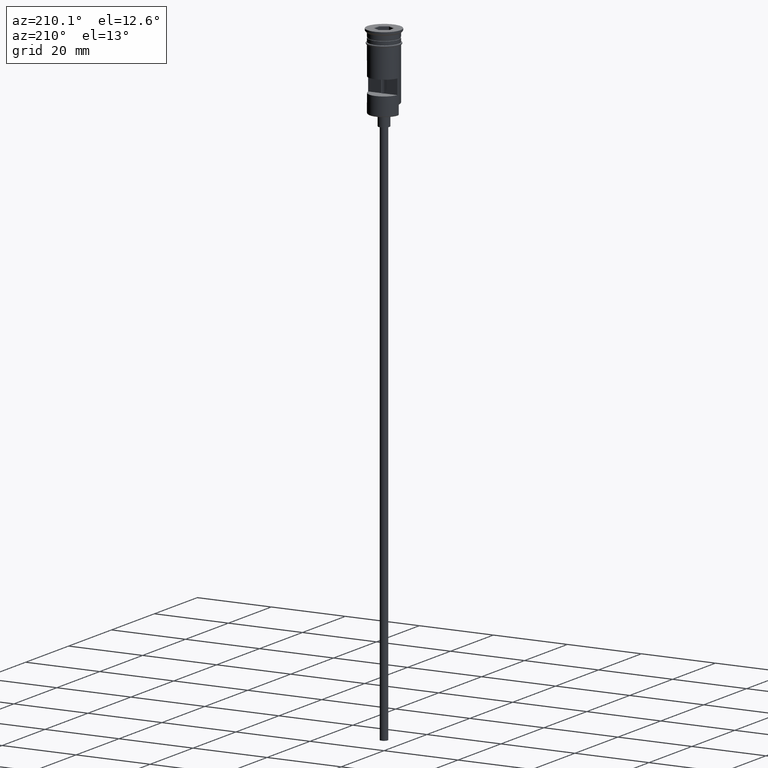
[diagram: clean part render]
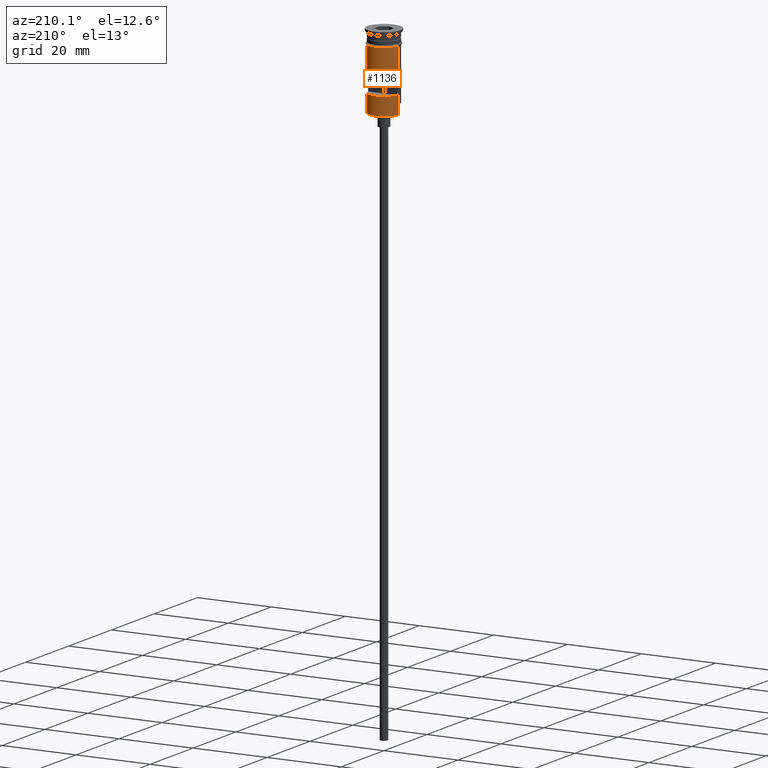
[diagram: same view with one face highlighted and labeled with its STEP entity id]
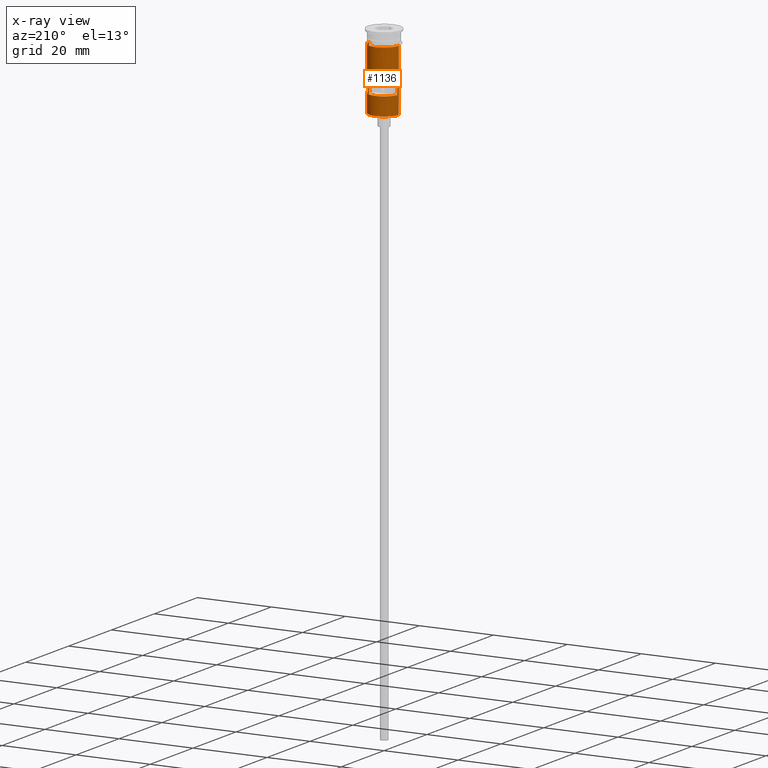
[diagram: x-ray of the same camera — body ghosted, the highlighted face saturated]
A machine part, auxiliary view. The second image highlights one B-rep face of the part: STEP entity #1136.
The next image is the same camera in x-ray: the body ghosted, the highlighted face saturated — about 0% of this face is hidden behind the body in this view.
In plain terms, the highlighted cylindrical surface (edge-blend (fillet) strip) has radius 4 mm, axis along (-0, -0, 1).
Its self-contained STEP definition (entity closure, byte-faithful):
#12 = VERTEX_POINT ( 'NONE', #555 ) ;
#30 = ORIENTED_EDGE ( 'NONE', *, *, #1176, .T. ) ;
#46 = DIRECTION ( 'NONE',  ( -0.000000000000000000, 0.000000000000000000, -1.000000000000000000 ) ) ;
#51 = AXIS2_PLACEMENT_3D ( 'NONE', #1554, #1308, #94 ) ;
#69 = CARTESIAN_POINT ( 'NONE',  ( -3.999999999999997335, 0.000000000000000000, -20.29999999999997584 ) ) ;
#76 = LINE ( 'NONE', #1069, #79 ) ;
#79 = VECTOR ( 'NONE', #1300, 1000.000000000000000 ) ;
#80 = VERTEX_POINT ( 'NONE', #1104 ) ;
#94 = DIRECTION ( 'NONE',  ( 1.000000000000000000, 0.000000000000000000, 0.000000000000000000 ) ) ;
#98 = EDGE_CURVE ( 'NONE', #213, #713, #373, .T. ) ;
#103 = CYLINDRICAL_SURFACE ( 'NONE', #1463, 4.000000000000000000 ) ;
#107 = CARTESIAN_POINT ( 'NONE',  ( 3.954743986657037524, 0.5999999999999996447, 0.000000000000000000 ) ) ;
#133 = CARTESIAN_POINT ( 'NONE',  ( -3.954743986657037524, 0.5999999999999996447, -15.50000000000000000 ) ) ;
#145 = CARTESIAN_POINT ( 'NONE',  ( -3.954743986657037524, 0.5999999999999996447, -11.50000000000000000 ) ) ;
#182 = CARTESIAN_POINT ( 'NONE',  ( 0.000000000000000000, 0.000000000000000000, -11.50000000000000000 ) ) ;
#184 = VERTEX_POINT ( 'NONE', #133 ) ;
#213 = VERTEX_POINT ( 'NONE', #69 ) ;
#226 = CARTESIAN_POINT ( 'NONE',  ( 0.000000000000000000, 0.000000000000000000, -15.50000000000000000 ) ) ;
#228 = VERTEX_POINT ( 'NONE', #369 ) ;
#233 = CARTESIAN_POINT ( 'NONE',  ( 0.000000000000000000, 0.000000000000000000, -20.29999999999997584 ) ) ;
#239 = VECTOR ( 'NONE', #650, 1000.000000000000000 ) ;
#240 = CARTESIAN_POINT ( 'NONE',  ( 0.000000000000000000, 0.000000000000000000, 0.000000000000000000 ) ) ;
#242 = VECTOR ( 'NONE', #657, 1000.000000000000000 ) ;
#262 = ORIENTED_EDGE ( 'NONE', *, *, #98, .T. ) ;
#291 = ORIENTED_EDGE ( 'NONE', *, *, #1227, .F. ) ;
#336 = EDGE_CURVE ( 'NONE', #228, #1207, #591, .T. ) ;
#369 = CARTESIAN_POINT ( 'NONE',  ( 4.000000000000000000, 0.000000000000000000, -3.799999999999998490 ) ) ;
#370 = FACE_OUTER_BOUND ( 'NONE', #891, .T. ) ;
#373 = LINE ( 'NONE', #755, #239 ) ;
#383 = VERTEX_POINT ( 'NONE', #1232 ) ;
#430 = EDGE_CURVE ( 'NONE', #184, #501, #669, .T. ) ;
#468 = CIRCLE ( 'NONE', #765, 4.000000000000000000 ) ;
#473 = EDGE_CURVE ( 'NONE', #713, #1207, #1025, .T. ) ;
#493 = LINE ( 'NONE', #107, #982 ) ;
#501 = VERTEX_POINT ( 'NONE', #145 ) ;
#518 = EDGE_CURVE ( 'NONE', #80, #228, #76, .T. ) ;
#538 = VECTOR ( 'NONE', #1383, 1000.000000000000000 ) ;
#555 = CARTESIAN_POINT ( 'NONE',  ( 3.954743986657038413, 0.5999999999999996447, -11.50000000000000000 ) ) ;
#591 = CIRCLE ( 'NONE', #51, 4.000000000000000000 ) ;
#596 = CIRCLE ( 'NONE', #794, 4.000000000000000000 ) ;
#599 = EDGE_CURVE ( 'NONE', #501, #12, #1313, .T. ) ;
#620 = DIRECTION ( 'NONE',  ( -0.000000000000000000, -0.000000000000000000, 1.000000000000000000 ) ) ;
#650 = DIRECTION ( 'NONE',  ( -0.000000000000000000, -0.000000000000000000, 1.000000000000000000 ) ) ;
#657 = DIRECTION ( 'NONE',  ( -0.000000000000000000, -0.000000000000000000, 1.000000000000000000 ) ) ;
#669 = LINE ( 'NONE', #1015, #242 ) ;
#713 = VERTEX_POINT ( 'NONE', #975 ) ;
#728 = CARTESIAN_POINT ( 'NONE',  ( -4.000000000000000000, 4.898587196589412829E-16, -3.799999999999998490 ) ) ;
#735 = DIRECTION ( 'NONE',  ( 1.000000000000000000, 0.000000000000000000, 0.000000000000000000 ) ) ;
#755 = CARTESIAN_POINT ( 'NONE',  ( -3.999999999999997335, 0.000000000000000000, -20.49999999999999645 ) ) ;
#765 = AXIS2_PLACEMENT_3D ( 'NONE', #233, #1580, #1455 ) ;
#790 = ORIENTED_EDGE ( 'NONE', *, *, #336, .F. ) ;
#794 = AXIS2_PLACEMENT_3D ( 'NONE', #226, #1462, #864 ) ;
#860 = CARTESIAN_POINT ( 'NONE',  ( 3.999999999999997335, 4.898587196589409870E-16, -20.29999999999997584 ) ) ;
#864 = DIRECTION ( 'NONE',  ( -1.000000000000000000, 0.000000000000000000, 0.000000000000000000 ) ) ;
#891 = EDGE_LOOP ( 'NONE', ( #262, #1032, #790, #1378, #1373, #30 ) ) ;
#948 = FACE_BOUND ( 'NONE', #974, .T. ) ;
#949 = ORIENTED_EDGE ( 'NONE', *, *, #599, .F. ) ;
#974 = EDGE_LOOP ( 'NONE', ( #291, #949, #1282, #1379 ) ) ;
#975 = CARTESIAN_POINT ( 'NONE',  ( -3.999999999999997335, 0.000000000000000000, -17.79999999999998295 ) ) ;
#980 = AXIS2_PLACEMENT_3D ( 'NONE', #182, #46, #1423 ) ;
#982 = VECTOR ( 'NONE', #1482, 1000.000000000000000 ) ;
#1015 = CARTESIAN_POINT ( 'NONE',  ( -3.954743986657037524, 0.5999999999999996447, 0.000000000000000000 ) ) ;
#1025 = LINE ( 'NONE', #1503, #538 ) ;
#1032 = ORIENTED_EDGE ( 'NONE', *, *, #473, .T. ) ;
#1049 = VECTOR ( 'NONE', #1196, 1000.000000000000000 ) ;
#1069 = CARTESIAN_POINT ( 'NONE',  ( 4.000000000000000000, 0.000000000000000000, 0.000000000000000000 ) ) ;
#1090 = LINE ( 'NONE', #1471, #1049 ) ;
#1104 = CARTESIAN_POINT ( 'NONE',  ( 4.000000000000000000, 4.898587196589412829E-16, -17.79999999999998295 ) ) ;
#1136 = ADVANCED_FACE ( 'NONE', ( #948, #370 ), #103, .T. ) ;
#1176 = EDGE_CURVE ( 'NONE', #1211, #213, #468, .T. ) ;
#1196 = DIRECTION ( 'NONE',  ( -0.000000000000000000, -0.000000000000000000, 1.000000000000000000 ) ) ;
#1207 = VERTEX_POINT ( 'NONE', #728 ) ;
#1211 = VERTEX_POINT ( 'NONE', #860 ) ;
#1227 = EDGE_CURVE ( 'NONE', #12, #383, #493, .T. ) ;
#1232 = CARTESIAN_POINT ( 'NONE',  ( 3.954743986657038413, 0.5999999999999996447, -15.50000000000000000 ) ) ;
#1282 = ORIENTED_EDGE ( 'NONE', *, *, #430, .F. ) ;
#1300 = DIRECTION ( 'NONE',  ( -0.000000000000000000, -0.000000000000000000, 1.000000000000000000 ) ) ;
#1308 = DIRECTION ( 'NONE',  ( -0.000000000000000000, -0.000000000000000000, 1.000000000000000000 ) ) ;
#1313 = CIRCLE ( 'NONE', #980, 4.000000000000000000 ) ;
#1373 = ORIENTED_EDGE ( 'NONE', *, *, #1527, .F. ) ;
#1378 = ORIENTED_EDGE ( 'NONE', *, *, #518, .F. ) ;
#1379 = ORIENTED_EDGE ( 'NONE', *, *, #1547, .F. ) ;
#1383 = DIRECTION ( 'NONE',  ( -0.000000000000000000, -0.000000000000000000, 1.000000000000000000 ) ) ;
#1423 = DIRECTION ( 'NONE',  ( 1.000000000000000000, 0.000000000000000000, 0.000000000000000000 ) ) ;
#1455 = DIRECTION ( 'NONE',  ( -1.000000000000000000, 0.000000000000000000, 0.000000000000000000 ) ) ;
#1462 = DIRECTION ( 'NONE',  ( 0.000000000000000000, 0.000000000000000000, 1.000000000000000000 ) ) ;
#1463 = AXIS2_PLACEMENT_3D ( 'NONE', #240, #620, #735 ) ;
#1471 = CARTESIAN_POINT ( 'NONE',  ( 3.999999999999997335, 4.898587196589409870E-16, -20.49999999999999645 ) ) ;
#1482 = DIRECTION ( 'NONE',  ( 0.000000000000000000, 0.000000000000000000, -1.000000000000000000 ) ) ;
#1503 = CARTESIAN_POINT ( 'NONE',  ( -4.000000000000000000, 4.898587196589412829E-16, 0.000000000000000000 ) ) ;
#1527 = EDGE_CURVE ( 'NONE', #1211, #80, #1090, .T. ) ;
#1547 = EDGE_CURVE ( 'NONE', #383, #184, #596, .T. ) ;
#1554 = CARTESIAN_POINT ( 'NONE',  ( 0.000000000000000000, 0.000000000000000000, -3.799999999999998490 ) ) ;
#1580 = DIRECTION ( 'NONE',  ( 0.000000000000000000, 0.000000000000000000, 1.000000000000000000 ) ) ;